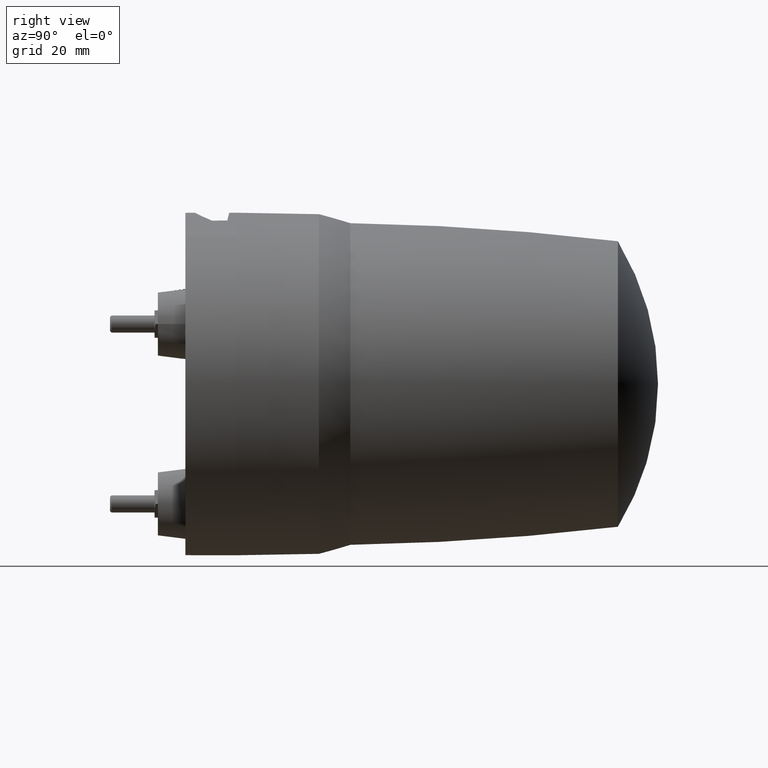
[diagram: clean part render]
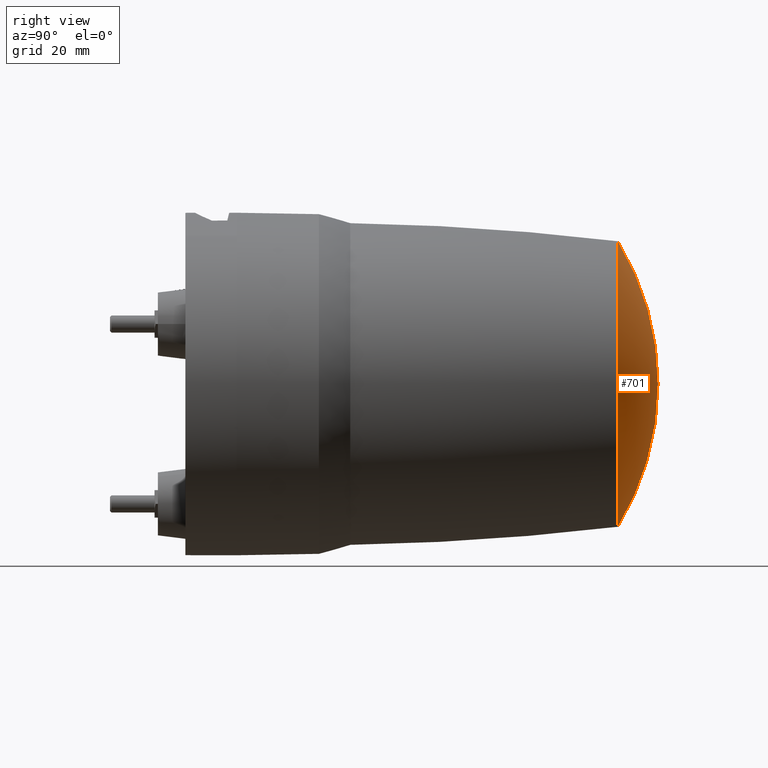
[diagram: same view with one face highlighted and labeled with its STEP entity id]
A machine part, right view. The second image highlights one B-rep face of the part: STEP entity #701.
In plain terms, the highlighted spherical surface has radius 80 mm.
Its self-contained STEP definition (entity closure, byte-faithful):
#134 = AXIS2_PLACEMENT_3D ( 'NONE', #5410, #709, #7253 ) ;
#503 = VERTEX_POINT ( 'NONE', #2207 ) ;
#684 = ORIENTED_EDGE ( 'NONE', *, *, #7259, .F. ) ;
#701 = ADVANCED_FACE ( 'NONE', ( #1324 ), #2564, .T. ) ;
#709 = DIRECTION ( 'NONE',  ( -0.000000000000000000, -1.000000000000000000, -0.000000000000000000 ) ) ;
#755 = DIRECTION ( 'NONE',  ( 0.000000000000000000, -1.000000000000000000, 0.000000000000000000 ) ) ;
#1324 = FACE_OUTER_BOUND ( 'NONE', #6197, .T. ) ;
#2207 = CARTESIAN_POINT ( 'NONE',  ( 0.000000000000000000, 129.2833406732575838, -41.68195516647119803 ) ) ;
#2564 = SPHERICAL_SURFACE ( 'NONE', #134, 80.00000000000000000 ) ;
#2782 = DIRECTION ( 'NONE',  ( 0.000000000000000000, -1.000000000000000000, 0.000000000000000000 ) ) ;
#3390 = CIRCLE ( 'NONE', #5801, 41.68195516647119803 ) ;
#3617 = CIRCLE ( 'NONE', #4753, 41.68195516647119803 ) ;
#4215 = EDGE_CURVE ( 'NONE', #5901, #503, #3617, .T. ) ;
#4753 = AXIS2_PLACEMENT_3D ( 'NONE', #6945, #2782, #6899 ) ;
#4791 = CARTESIAN_POINT ( 'NONE',  ( -5.427486597387500927E-15, 129.2833406732575838, 41.68195516647119803 ) ) ;
#5410 = CARTESIAN_POINT ( 'NONE',  ( 0.000000000000000000, 61.00000000000000000, -7.307193957557699784E-31 ) ) ;
#5801 = AXIS2_PLACEMENT_3D ( 'NONE', #6860, #755, #7565 ) ;
#5901 = VERTEX_POINT ( 'NONE', #4791 ) ;
#6197 = EDGE_LOOP ( 'NONE', ( #684, #7743 ) ) ;
#6860 = CARTESIAN_POINT ( 'NONE',  ( 0.000000000000000000, 129.2833406732575838, 1.795706997007590157E-15 ) ) ;
#6899 = DIRECTION ( 'NONE',  ( 0.000000000000000000, 0.000000000000000000, -1.000000000000000000 ) ) ;
#6945 = CARTESIAN_POINT ( 'NONE',  ( 0.000000000000000000, 129.2833406732575838, 1.795706997007590157E-15 ) ) ;
#7253 = DIRECTION ( 'NONE',  ( 0.000000000000000000, 0.000000000000000000, -1.000000000000000000 ) ) ;
#7259 = EDGE_CURVE ( 'NONE', #503, #5901, #3390, .T. ) ;
#7565 = DIRECTION ( 'NONE',  ( 0.000000000000000000, 0.000000000000000000, -1.000000000000000000 ) ) ;
#7743 = ORIENTED_EDGE ( 'NONE', *, *, #4215, .F. ) ;